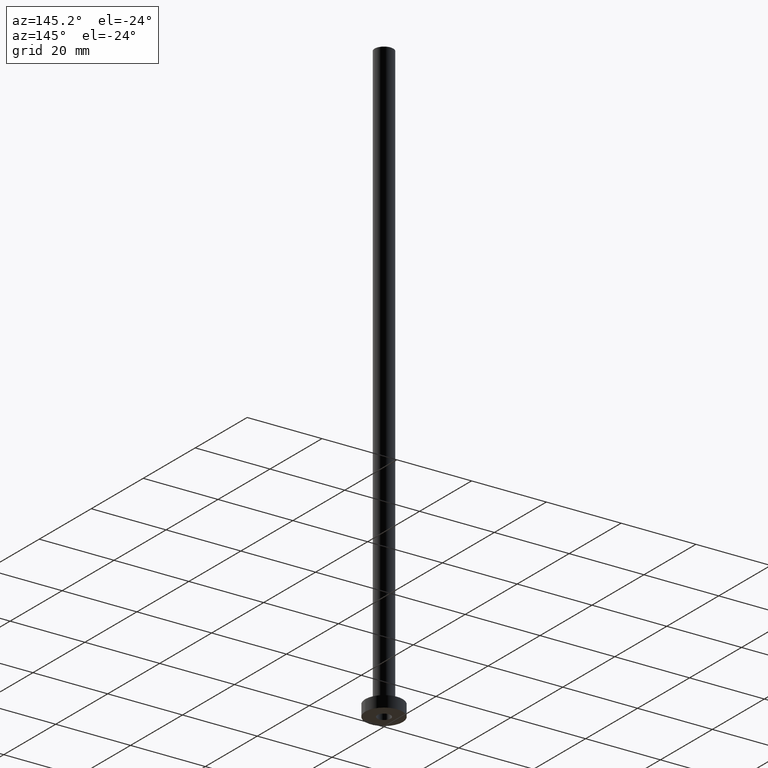
[diagram: clean part render]
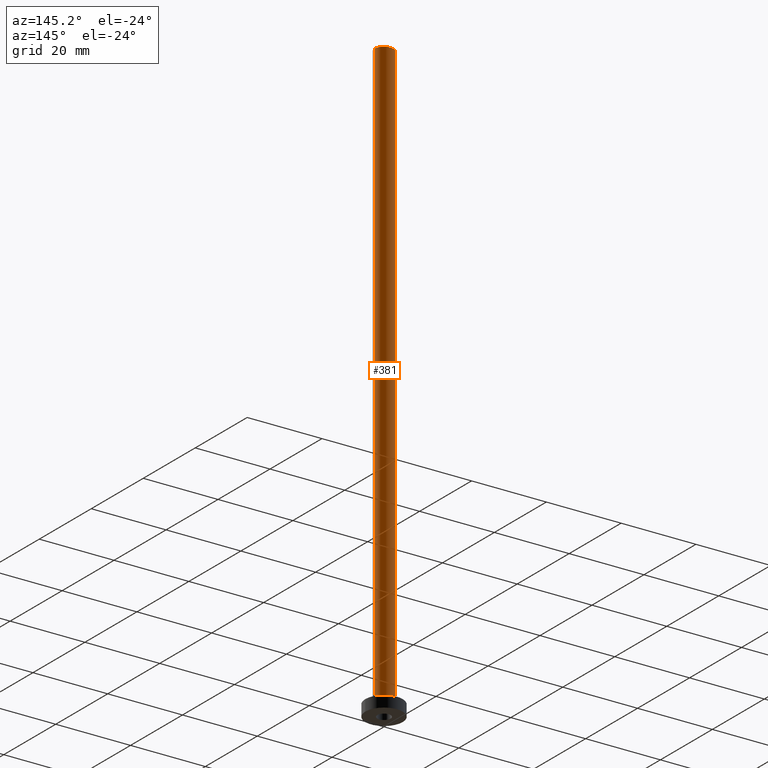
[diagram: same view with one face highlighted and labeled with its STEP entity id]
A machine part, auxiliary view. The second image highlights one B-rep face of the part: STEP entity #381.
In plain terms, the highlighted cylindrical surface (edge-blend (fillet) strip) has radius 2.5 mm, axis along (-0, -0, -1).
Its self-contained STEP definition (entity closure, byte-faithful):
#31 = EDGE_CURVE ( 'NONE', #150, #441, #453, .T. ) ;
#35 = DIRECTION ( 'NONE',  ( 1.000000000000000000, 0.000000000000000000, 0.000000000000000000 ) ) ;
#41 = DIRECTION ( 'NONE',  ( 0.000000000000000000, 0.000000000000000000, 1.000000000000000000 ) ) ;
#46 = CYLINDRICAL_SURFACE ( 'NONE', #231, 2.500000000000000000 ) ;
#64 = VECTOR ( 'NONE', #315, 1000.000000000000000 ) ;
#82 = VERTEX_POINT ( 'NONE', #376 ) ;
#110 = EDGE_LOOP ( 'NONE', ( #159, #346, #411, #304 ) ) ;
#150 = VERTEX_POINT ( 'NONE', #240 ) ;
#156 = EDGE_CURVE ( 'NONE', #150, #82, #207, .T. ) ;
#159 = ORIENTED_EDGE ( 'NONE', *, *, #31, .F. ) ;
#186 = LINE ( 'NONE', #320, #218 ) ;
#207 = LINE ( 'NONE', #311, #64 ) ;
#210 = DIRECTION ( 'NONE',  ( -0.000000000000000000, -0.000000000000000000, -1.000000000000000000 ) ) ;
#215 = VERTEX_POINT ( 'NONE', #280 ) ;
#218 = VECTOR ( 'NONE', #364, 1000.000000000000000 ) ;
#231 = AXIS2_PLACEMENT_3D ( 'NONE', #242, #210, #424 ) ;
#238 = CARTESIAN_POINT ( 'NONE',  ( -2.500000000000000000, 0.000000000000000000, 160.0000000000000000 ) ) ;
#240 = CARTESIAN_POINT ( 'NONE',  ( 2.500000000000000000, 3.061616997868383141E-16, 160.0000000000000000 ) ) ;
#241 = EDGE_CURVE ( 'NONE', #441, #215, #186, .T. ) ;
#242 = CARTESIAN_POINT ( 'NONE',  ( 0.000000000000000000, 0.000000000000000000, 160.0000000000000000 ) ) ;
#256 = AXIS2_PLACEMENT_3D ( 'NONE', #380, #456, #387 ) ;
#280 = CARTESIAN_POINT ( 'NONE',  ( -2.500000000000000000, 0.000000000000000000, 3.299999999999997158 ) ) ;
#284 = CARTESIAN_POINT ( 'NONE',  ( 0.000000000000000000, 0.000000000000000000, 3.299999999999997158 ) ) ;
#304 = ORIENTED_EDGE ( 'NONE', *, *, #241, .F. ) ;
#311 = CARTESIAN_POINT ( 'NONE',  ( 2.500000000000000000, 3.061616997868383141E-16, 160.0000000000000000 ) ) ;
#315 = DIRECTION ( 'NONE',  ( -0.000000000000000000, -0.000000000000000000, -1.000000000000000000 ) ) ;
#320 = CARTESIAN_POINT ( 'NONE',  ( -2.500000000000000000, 0.000000000000000000, 160.0000000000000000 ) ) ;
#346 = ORIENTED_EDGE ( 'NONE', *, *, #156, .T. ) ;
#364 = DIRECTION ( 'NONE',  ( -0.000000000000000000, -0.000000000000000000, -1.000000000000000000 ) ) ;
#375 = CIRCLE ( 'NONE', #384, 2.500000000000000000 ) ;
#376 = CARTESIAN_POINT ( 'NONE',  ( 2.500000000000000000, 3.061616997868383141E-16, 3.299999999999997158 ) ) ;
#380 = CARTESIAN_POINT ( 'NONE',  ( 0.000000000000000000, 0.000000000000000000, 160.0000000000000000 ) ) ;
#381 = ADVANCED_FACE ( 'NONE', ( #418 ), #46, .T. ) ;
#384 = AXIS2_PLACEMENT_3D ( 'NONE', #284, #41, #35 ) ;
#387 = DIRECTION ( 'NONE',  ( 1.000000000000000000, 0.000000000000000000, 0.000000000000000000 ) ) ;
#411 = ORIENTED_EDGE ( 'NONE', *, *, #451, .T. ) ;
#418 = FACE_OUTER_BOUND ( 'NONE', #110, .T. ) ;
#424 = DIRECTION ( 'NONE',  ( -1.000000000000000000, 0.000000000000000000, 0.000000000000000000 ) ) ;
#441 = VERTEX_POINT ( 'NONE', #238 ) ;
#451 = EDGE_CURVE ( 'NONE', #82, #215, #375, .T. ) ;
#453 = CIRCLE ( 'NONE', #256, 2.500000000000000000 ) ;
#456 = DIRECTION ( 'NONE',  ( 0.000000000000000000, 0.000000000000000000, 1.000000000000000000 ) ) ;